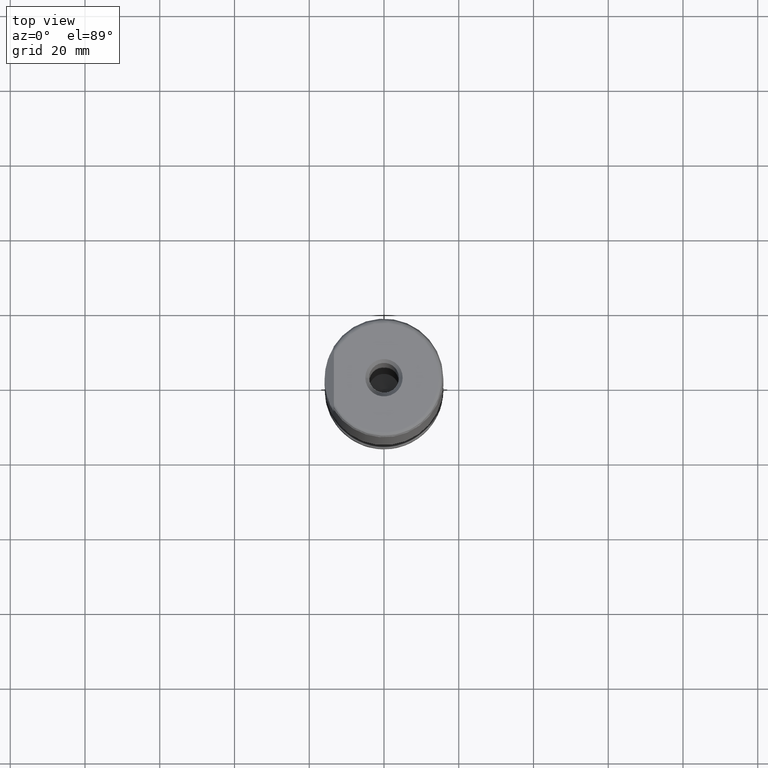
[diagram: clean part render]
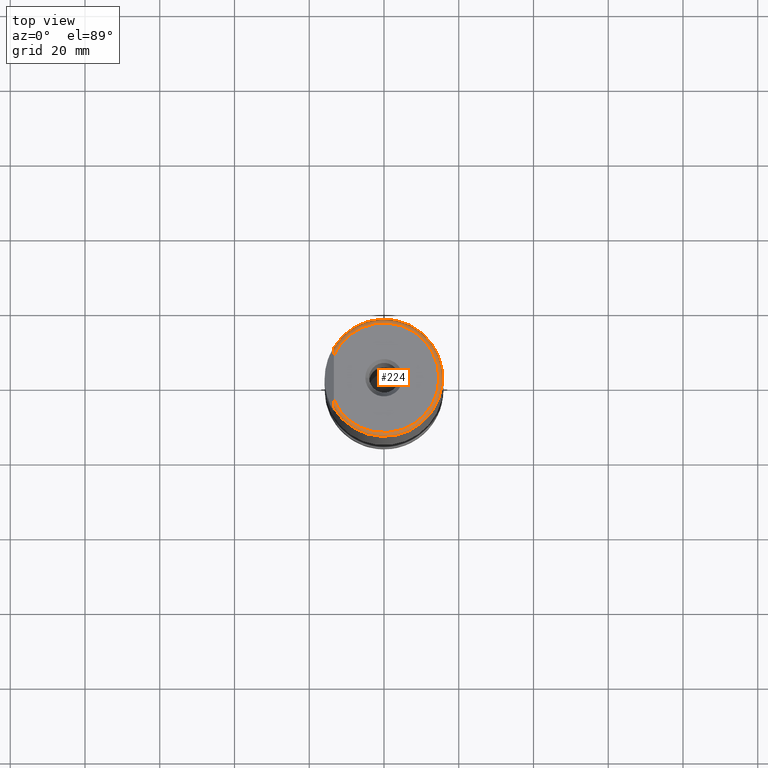
[diagram: same view with one face highlighted and labeled with its STEP entity id]
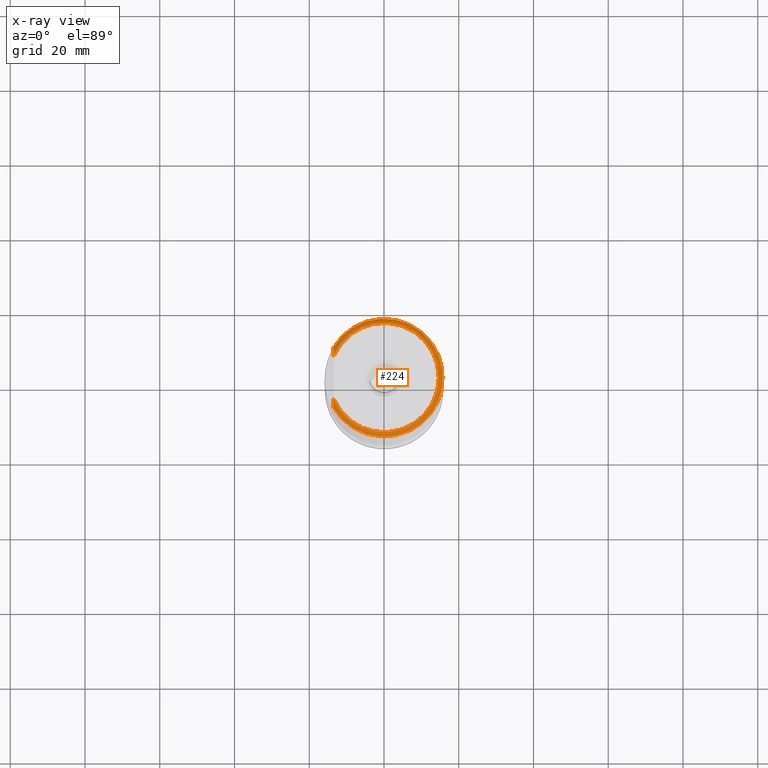
[diagram: x-ray of the same camera — body ghosted, the highlighted face saturated]
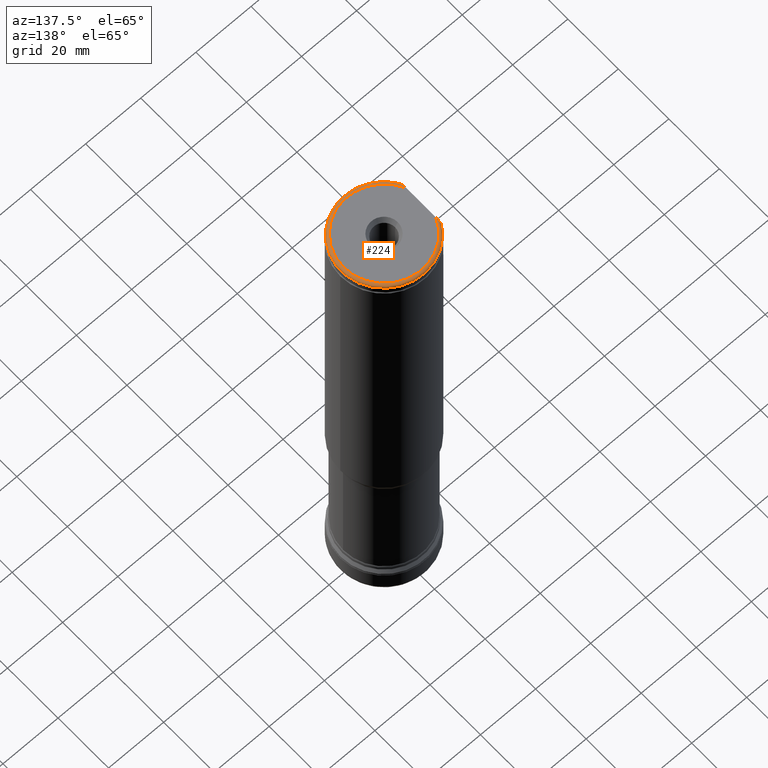
[diagram: same view with one face highlighted and labeled with its STEP entity id]
A machine part, top view. The second image highlights one B-rep face of the part: STEP entity #224.
The next image is the same camera in x-ray: the body ghosted, the highlighted face saturated — about 0% of this face is hidden behind the body in this view.
A second angle (auxiliary view) of the same face is appended — the face is thin or edge-on in the first view.
In plain terms, the highlighted toroidal blend (fillet) surface has major radius 14.675 mm and minor (blend) radius 1 mm.
Its self-contained STEP definition (entity closure, byte-faithful):
#203=TOROIDAL_SURFACE('',#999,14.675,1.);
#211=FACE_OUTER_BOUND('',#428,.T.);
#224=ADVANCED_FACE('',(#211),#203,.T.);
#428=EDGE_LOOP('',(#560,#561,#562,#563));
#560=ORIENTED_EDGE('',*,*,#789,.F.);
#561=ORIENTED_EDGE('',*,*,#790,.T.);
#562=ORIENTED_EDGE('',*,*,#785,.F.);
#563=ORIENTED_EDGE('',*,*,#791,.T.);
#714=VERTEX_POINT('',#1702);
#715=VERTEX_POINT('',#1704);
#716=VERTEX_POINT('',#1717);
#717=VERTEX_POINT('',#1718);
#785=EDGE_CURVE('',#714,#715,#851,.T.);
#789=EDGE_CURVE('',#716,#717,#852,.T.);
#790=EDGE_CURVE('',#716,#715,#942,.T.);
#791=EDGE_CURVE('',#714,#717,#943,.T.);
#851=CIRCLE('',#995,15.675);
#852=CIRCLE('',#998,14.675);
#942=B_SPLINE_CURVE_WITH_KNOTS('',3,(#1719,#1720,#1721,#1722,#1723,#1724,
#1725,#1726),.UNSPECIFIED.,.F.,.F.,(4,2,2,4),(0.,0.500000000000005,0.750000000000003,
1.),.UNSPECIFIED.);
#943=B_SPLINE_CURVE_WITH_KNOTS('',3,(#1727,#1728,#1729,#1730,#1731,#1732,
#1733,#1734),.UNSPECIFIED.,.F.,.F.,(4,2,2,4),(0.,0.25,0.5,1.),
 .UNSPECIFIED.);
#995=AXIS2_PLACEMENT_3D('',#1703,#1080,#1081);
#998=AXIS2_PLACEMENT_3D('',#1716,#1087,#1088);
#999=AXIS2_PLACEMENT_3D('',#1735,#1089,#1090);
#1080=DIRECTION('',(-1.17145536458252E-15,0.,-1.));
#1081=DIRECTION('',(-1.,0.,1.77069062938621E-15));
#1087=DIRECTION('',(1.17145536458252E-15,0.,1.));
#1088=DIRECTION('',(-1.,0.,1.89135097891849E-15));
#1089=DIRECTION('',(-1.17145536458252E-15,0.,-1.));
#1090=DIRECTION('',(-1.,0.,1.77069062938621E-15));
#1702=CARTESIAN_POINT('',(-13.4873999999998,7.98721893026605,189.5));
#1703=CARTESIAN_POINT('',(2.21990791588388E-13,0.,189.5));
#1704=CARTESIAN_POINT('',(-13.4873999999998,-7.98721893026605,189.5));
#1716=CARTESIAN_POINT('',(2.23162246952971E-13,0.,190.5));
#1717=CARTESIAN_POINT('',(-13.4873999999998,-5.78322282468867,190.5));
#1718=CARTESIAN_POINT('',(-13.4873999999998,5.78322282468869,190.5));
#1719=CARTESIAN_POINT('',(-13.4873999999998,-5.78322282468867,190.5));
#1720=CARTESIAN_POINT('',(-13.4873999999998,-6.2153993538287,190.5));
#1721=CARTESIAN_POINT('',(-13.4873999999998,-6.66033392319174,190.460471176885));
#1722=CARTESIAN_POINT('',(-13.4873999999998,-7.28446673481605,190.266460345474));
#1723=CARTESIAN_POINT('',(-13.4873999999998,-7.48411378488165,190.181558432478));
#1724=CARTESIAN_POINT('',(-13.4873999999998,-7.83818963749528,189.914712701713));
#1725=CARTESIAN_POINT('',(-13.4873999999998,-7.98721893026604,189.716284063495));
#1726=CARTESIAN_POINT('',(-13.4873999999998,-7.98721893026604,189.5));
#1727=CARTESIAN_POINT('',(-13.4873999999998,7.98721893026607,189.5));
#1728=CARTESIAN_POINT('',(-13.4873999999998,7.98721893026593,189.720937127673));
#1729=CARTESIAN_POINT('',(-13.4873999999998,7.83769122277269,189.914895925195));
#1730=CARTESIAN_POINT('',(-13.4873999999998,7.48601411077843,190.180317907556));
#1731=CARTESIAN_POINT('',(-13.4873999999998,7.28189737653996,190.267498991133));
#1732=CARTESIAN_POINT('',(-13.4873999999998,6.65697861353614,190.461029312967));
#1733=CARTESIAN_POINT('',(-13.4873999999998,6.21660844267494,190.5));
#1734=CARTESIAN_POINT('',(-13.4873999999998,5.78322282468869,190.5));
#1735=CARTESIAN_POINT('',(2.21990791588388E-13,0.,189.5));